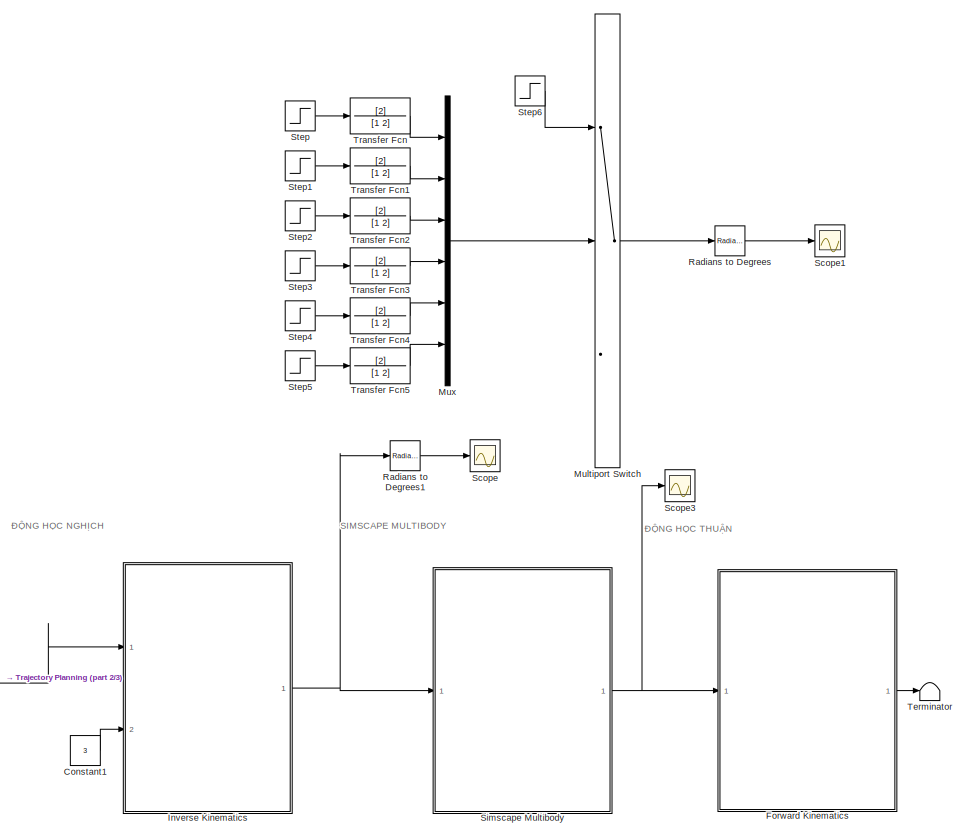
[diagram: root canvas - part 1/3, central region]
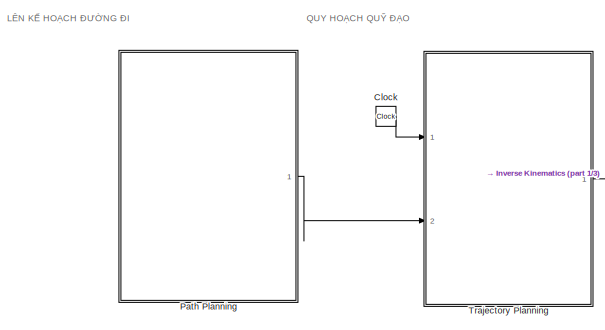
[diagram: root canvas - part 2/3, middle left region]
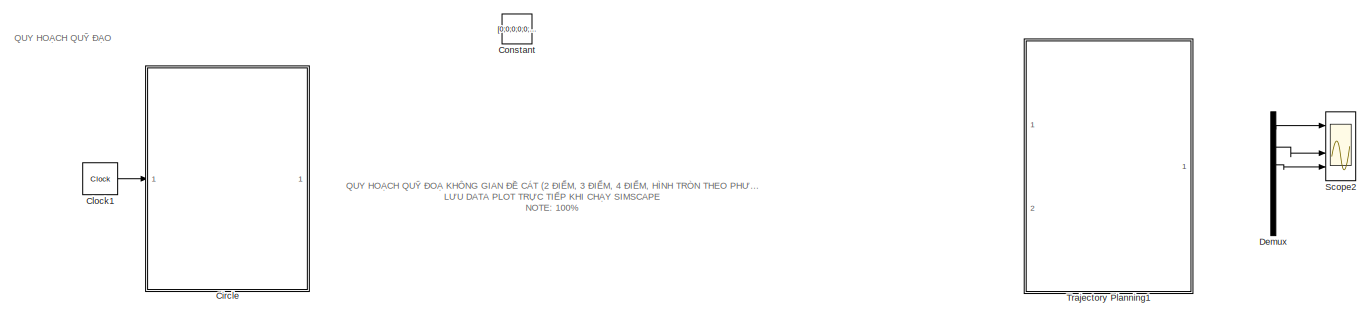
[diagram: root canvas - part 3/3, full width, bottom band]
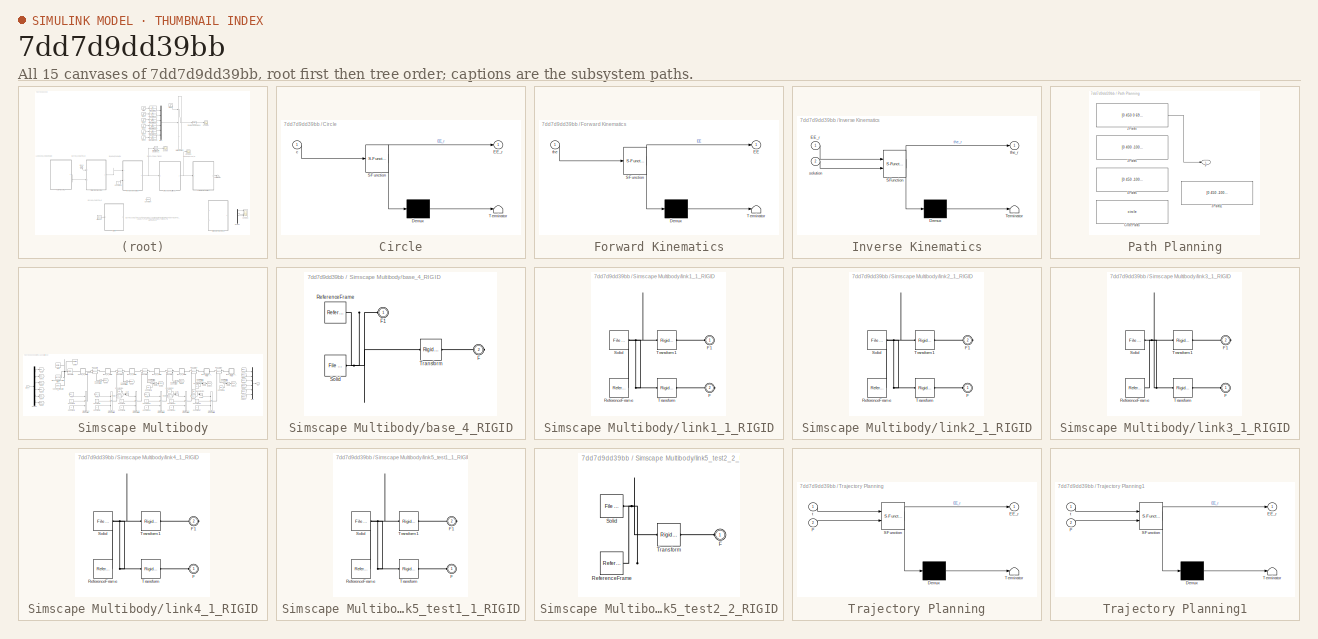
[diagram: thumbnail index - all 15 canvases of the model, root first then tree order]
MODEL slx_7dd7d9dd39bb
KIND model
CONFIG AbsTol = auto
CONFIG EnableMultiTasking = off
CONFIG FixedStep = 0.01
CONFIG MaxStep = auto
CONFIG MinStep = auto
CONFIG RelTol = 1e-3
CONFIG SampleTimeConstraint = Unconstrained
CONFIG SolverName = FixedStepAuto
CONFIG StartTime = 0.0
CONFIG StopTime = 10
WORKSPACE source: external: MATLAB File  (data not in archive)
BLOCK [SubSystem] Circle
  Commented = on
  ErrorFcn = Stateflow.Translate.translate
  PermitHierarchicalResolution = ExplicitOnly
  Ports = [1, 1]
  RequestExecContextInheritance = off
  SFBlockType = MATLAB Function
  TreatAsAtomicUnit = on
BLOCK [Demux] Circle/ Demux 
  Outputs = 1
  Ports = [1, 1]
BLOCK [S-Function] Circle/ SFunction 
  EnableBusSupport = on
  FunctionName = sf_sfun
  PortCounts = [1 2]
  Ports = [1, 2]
  SFcnIsStateOwnerBlock = off
  SFunctionDeploymentMode = off
  Tag = Stateflow S-Function 4
BLOCK [Terminator] Circle/ Terminator 
BLOCK [Outport] Circle/EE_r
BLOCK [Inport] Circle/c
BLOCK [Clock] Clock
BLOCK [Clock] Clock1
  Commented = on
  DisplayTime = on
BLOCK [Constant] Constant
  Value = [0;0;0;0;0;0]
BLOCK [Constant] Constant1
  Value = 3
BLOCK [Demux] Demux
  Outputs = 6
  Ports = [1, 6]
BLOCK [SubSystem] Forward Kinematics
  ErrorFcn = Stateflow.Translate.translate
  PermitHierarchicalResolution = ExplicitOnly
  Ports = [1, 1]
  RequestExecContextInheritance = off
  SFBlockType = MATLAB Function
  TreatAsAtomicUnit = on
BLOCK [Demux] Forward Kinematics/ Demux 
  Outputs = 1
  Ports = [1, 1]
BLOCK [S-Function] Forward Kinematics/ SFunction 
  EnableBusSupport = on
  FunctionName = sf_sfun
  PortCounts = [1 2]
  Ports = [1, 2]
  SFcnIsStateOwnerBlock = off
  SFunctionDeploymentMode = off
  Tag = Stateflow S-Function 1
BLOCK [Terminator] Forward Kinematics/ Terminator 
BLOCK [Outport] Forward Kinematics/EE
BLOCK [Inport] Forward Kinematics/the
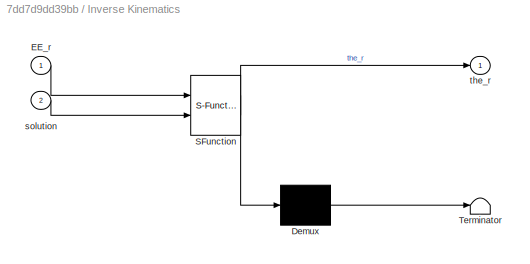
BLOCK [SubSystem] Inverse Kinematics
  ErrorFcn = Stateflow.Translate.translate
  PermitHierarchicalResolution = ExplicitOnly
  Ports = [2, 1]
  RequestExecContextInheritance = off
  SFBlockType = MATLAB Function
  TreatAsAtomicUnit = on
BLOCK [Demux] Inverse Kinematics/ Demux 
  Outputs = 1
  Ports = [1, 1]
BLOCK [S-Function] Inverse Kinematics/ SFunction 
  EnableBusSupport = on
  FunctionName = sf_sfun
  PortCounts = [2 2]
  Ports = [2, 2]
  SFcnIsStateOwnerBlock = off
  SFunctionDeploymentMode = off
  Tag = Stateflow S-Function 6
BLOCK [Terminator] Inverse Kinematics/ Terminator 
BLOCK [Inport] Inverse Kinematics/EE_r
BLOCK [Inport] Inverse Kinematics/solution
  Port = 2
BLOCK [Outport] Inverse Kinematics/the_r
BLOCK [MultiPortSwitch] Multiport Switch
  Commented = on
  InputSameDT = off
  Inputs = 2
  Ports = [3, 1]
  SaturateOnIntegerOverflow = off
BLOCK [Mux] Mux
  Commented = on
  DisplayOption = bar
  Inputs = 6
  Ports = [6, 1]
BLOCK [SubSystem] Path Planning
  Ports = [0, 1]
  RequestExecContextInheritance = off
BLOCK [Constant] Path Planning/2 Points
  Value = [0 450 0 695 0 0 0; 10/2 450 100 675 0 0 0;20/2 450 0 695 0 0 0]
BLOCK [Constant] Path Planning/3 Points
  Commented = on
  Value = [0 400 -100 650 0 0 0; 10/3 400 100 650 0 0 0; 20/3 400 0 500 0 0 0; 30/3 400 -100 650 0 0 0]
BLOCK [Constant] Path Planning/3 Points1
  Commented = on
  Value = [0 450 -100 550 0 0 0; 10/3 450 100 650 0 0 0; 20/3 450 100 450 0 0 0; 30/3 450 -100 550 0 0 0]
BLOCK [Constant] Path Planning/4 Points
  Commented = on
  Value = [0 450 -100 650 0 0 0; 10/4 450 100 650 0 0 0; 20/4 450 100 500 0 0 0; 30/4 450 -100 500 0 0 0;40/4 450 -100 650 0 0 0]
BLOCK [Constant] Path Planning/Circle Points
  Commented = on
  Value = circle
BLOCK [Outport] Path Planning/P
BLOCK [Reference] Radians to Degrees  REF=simulink_extras/Transformations/Radians
to Degrees
  Commented = on
  Ports = [1, 1]
  SourceBlock = simulink_extras/Transformations/Radians\nto Degrees
  SourceProductBaseCode = SL
  SourceType = RadiansToDegrees
BLOCK [Reference] Radians to Degrees1  REF=simulink_extras/Transformations/Radians
to Degrees
  Ports = [1, 1]
  SourceBlock = simulink_extras/Transformations/Radians\nto Degrees
  SourceProductBaseCode = SL
  SourceType = RadiansToDegrees
BLOCK [Scope] Scope
  Floating = off
  NumInputPorts = 1
  Ports = [1]
  ScopeSpecificationString = Simulink.scopes.TimeScopeBlockCfg('CurrentConfiguration', extmgr.ConfigurationSet(extmgr.Configuration('Core','General UI',true),extmgr.Configuration('Core','Source UI',true),extmgr.Configuration('Sources','WiredSimulink',true,'DataLogging',true,'DataLoggingSaveFormat','StructureWithTime'),extmgr.Configuration('Visuals','Time Domain',true,'SerializedDisplays',{struct('MinYLimReal','-103.54614','Ma...<+1755ch>
BLOCK [Scope] Scope1
  Commented = on
  Floating = off
  NumInputPorts = 1
  Ports = [1]
  ScopeSpecificationString = Simulink.scopes.TimeScopeBlockCfg('CurrentConfiguration', extmgr.ConfigurationSet(extmgr.Configuration('Core','General UI',true,'FigureColor',[1 1 1]),extmgr.Configuration('Core','Source UI',true),extmgr.Configuration('Sources','WiredSimulink',true,'DataLoggingVariableName','ScopeData2','DataLogging',true,'DataLoggingSaveFormat','StructureWithTime'),extmgr.Configuration('Visuals','Time Domain',tru...<+2275ch>
BLOCK [Scope] Scope2
  Floating = off
  NumInputPorts = 4
  Ports = [4]
  ScopeSpecificationString = Simulink.scopes.TimeScopeBlockCfg('CurrentConfiguration', extmgr.ConfigurationSet(extmgr.Configuration('Core','General UI',true,'FigureColor',[1 1 1]),extmgr.Configuration('Core','Source UI',true),extmgr.Configuration('Sources','WiredSimulink',true,'DataLoggingVariableName','ScopeData1'),extmgr.Configuration('Visuals','Time Domain',true,'SerializedDisplays',{struct('MinYLimReal','350.00000','MaxYL...<+3159ch>
BLOCK [Scope] Scope3
  Floating = off
  NumInputPorts = 1
  Ports = [1]
  ScopeSpecificationString = Simulink.scopes.TimeScopeBlockCfg('CurrentConfiguration', extmgr.ConfigurationSet(extmgr.Configuration('Core','General UI',true),extmgr.Configuration('Core','Source UI',true),extmgr.Configuration('Sources','WiredSimulink',true,'DataLoggingVariableName','ScopeData1'),extmgr.Configuration('Visuals','Time Domain',true,'SerializedDisplays',{struct('MinYLimReal','-1.80722','MaxYLimReal','3.59857','YLab...<+1680ch>
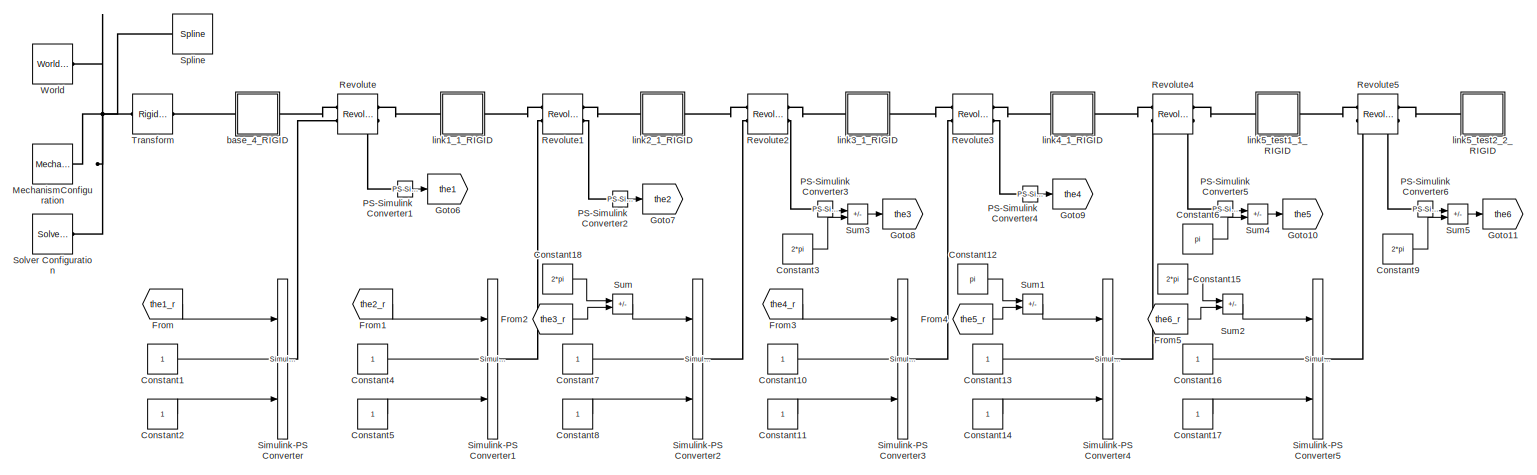
[diagram: Simscape Multibody - part 1/3, most of the canvas]
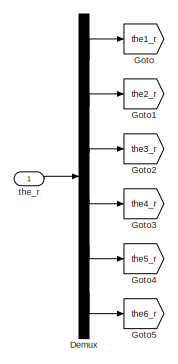
[diagram: Simscape Multibody - part 2/3, middle left region]
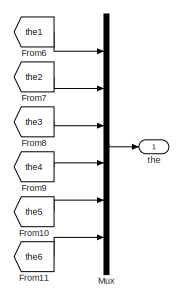
[diagram: Simscape Multibody - part 3/3, middle right region]
BLOCK [SubSystem] Simscape Multibody
  Ports = [1, 1]
  RequestExecContextInheritance = off
BLOCK [Constant] Simscape Multibody/Constant1
BLOCK [Constant] Simscape Multibody/Constant10
BLOCK [Constant] Simscape Multibody/Constant11
BLOCK [Constant] Simscape Multibody/Constant12
  Value = pi
BLOCK [Constant] Simscape Multibody/Constant13
BLOCK [Constant] Simscape Multibody/Constant14
BLOCK [Constant] Simscape Multibody/Constant15
  Value = 2*pi
BLOCK [Constant] Simscape Multibody/Constant16
BLOCK [Constant] Simscape Multibody/Constant17
BLOCK [Constant] Simscape Multibody/Constant18
  Value = 2*pi
BLOCK [Constant] Simscape Multibody/Constant2
BLOCK [Constant] Simscape Multibody/Constant3
  Value = 2*pi
BLOCK [Constant] Simscape Multibody/Constant4
BLOCK [Constant] Simscape Multibody/Constant5
BLOCK [Constant] Simscape Multibody/Constant6
  Value = pi
BLOCK [Constant] Simscape Multibody/Constant7
BLOCK [Constant] Simscape Multibody/Constant8
BLOCK [Constant] Simscape Multibody/Constant9
  Value = 2*pi
BLOCK [Demux] Simscape Multibody/Demux
  Outputs = 6
  Ports = [1, 6]
BLOCK [From] Simscape Multibody/From
  GotoTag = the1_r
BLOCK [From] Simscape Multibody/From1
  GotoTag = the2_r
BLOCK [From] Simscape Multibody/From10
  GotoTag = the5
BLOCK [From] Simscape Multibody/From11
  GotoTag = the6
BLOCK [From] Simscape Multibody/From2
  GotoTag = the3_r
BLOCK [From] Simscape Multibody/From3
  GotoTag = the4_r
BLOCK [From] Simscape Multibody/From4
  GotoTag = the5_r
BLOCK [From] Simscape Multibody/From5
  GotoTag = the6_r
BLOCK [From] Simscape Multibody/From6
  GotoTag = the1
BLOCK [From] Simscape Multibody/From7
  GotoTag = the2
BLOCK [From] Simscape Multibody/From8
  GotoTag = the3
BLOCK [From] Simscape Multibody/From9
  GotoTag = the4
BLOCK [Goto] Simscape Multibody/Goto
  GotoTag = the1_r
BLOCK [Goto] Simscape Multibody/Goto1
  GotoTag = the2_r
BLOCK [Goto] Simscape Multibody/Goto10
  GotoTag = the5
BLOCK [Goto] Simscape Multibody/Goto11
  GotoTag = the6
BLOCK [Goto] Simscape Multibody/Goto2
  GotoTag = the3_r
BLOCK [Goto] Simscape Multibody/Goto3
  GotoTag = the4_r
BLOCK [Goto] Simscape Multibody/Goto4
  GotoTag = the5_r
BLOCK [Goto] Simscape Multibody/Goto5
  GotoTag = the6_r
BLOCK [Goto] Simscape Multibody/Goto6
  GotoTag = the1
BLOCK [Goto] Simscape Multibody/Goto7
  GotoTag = the2
BLOCK [Goto] Simscape Multibody/Goto8
  GotoTag = the3
BLOCK [Goto] Simscape Multibody/Goto9
  GotoTag = the4
BLOCK [Reference] Simscape Multibody/MechanismConfiguration  REF=sm_lib/Utilities/Mechanism
Configuration
  Ports = [0, 0, 0, 0, 0, 0, 1]
  SourceBlock = sm_lib/Utilities/Mechanism\nConfiguration
  SourceProductBaseCode = MS
  SourceType = Mechanism\nConfiguration
BLOCK [Mux] Simscape Multibody/Mux
  DisplayOption = bar
  Inputs = 6
  Ports = [6, 1]
BLOCK [Reference] Simscape Multibody/PS-Simulink Converter1  REF=nesl_utility/PS-Simulink
Converter
  Ports = [0, 1, 0, 0, 0, 1]
  SourceBlock = nesl_utility/PS-Simulink\nConverter
  SourceProductBaseCode = PW,SS
  SourceType = PS-Simulink\nConverter
BLOCK [Reference] Simscape Multibody/PS-Simulink Converter2  REF=nesl_utility/PS-Simulink
Converter
  Ports = [0, 1, 0, 0, 0, 1]
  SourceBlock = nesl_utility/PS-Simulink\nConverter
  SourceProductBaseCode = PW,SS
  SourceType = PS-Simulink\nConverter
BLOCK [Reference] Simscape Multibody/PS-Simulink Converter3  REF=nesl_utility/PS-Simulink
Converter
  Ports = [0, 1, 0, 0, 0, 1]
  SourceBlock = nesl_utility/PS-Simulink\nConverter
  SourceProductBaseCode = PW,SS
  SourceType = PS-Simulink\nConverter
BLOCK [Reference] Simscape Multibody/PS-Simulink Converter4  REF=nesl_utility/PS-Simulink
Converter
  Ports = [0, 1, 0, 0, 0, 1]
  SourceBlock = nesl_utility/PS-Simulink\nConverter
  SourceProductBaseCode = PW,SS
  SourceType = PS-Simulink\nConverter
BLOCK [Reference] Simscape Multibody/PS-Simulink Converter5  REF=nesl_utility/PS-Simulink
Converter
  Ports = [0, 1, 0, 0, 0, 1]
  SourceBlock = nesl_utility/PS-Simulink\nConverter
  SourceProductBaseCode = PW,SS
  SourceType = PS-Simulink\nConverter
BLOCK [Reference] Simscape Multibody/PS-Simulink Converter6  REF=nesl_utility/PS-Simulink
Converter
  Ports = [0, 1, 0, 0, 0, 1]
  SourceBlock = nesl_utility/PS-Simulink\nConverter
  SourceProductBaseCode = PW,SS
  SourceType = PS-Simulink\nConverter
BLOCK [Reference] Simscape Multibody/Revolute  REF=sm_lib/Joints/Revolute Joint
  Ports = [0, 0, 0, 0, 0, 2, 2]
  SourceBlock = sm_lib/Joints/Revolute Joint
  SourceProductBaseCode = MS
  SourceType = Revolute Joint
BLOCK [Reference] Simscape Multibody/Revolute1  REF=sm_lib/Joints/Revolute Joint
  Ports = [0, 0, 0, 0, 0, 2, 2]
  SourceBlock = sm_lib/Joints/Revolute Joint
  SourceProductBaseCode = MS
  SourceType = Revolute Joint
BLOCK [Reference] Simscape Multibody/Revolute2  REF=sm_lib/Joints/Revolute Joint
  Ports = [0, 0, 0, 0, 0, 2, 2]
  SourceBlock = sm_lib/Joints/Revolute Joint
  SourceProductBaseCode = MS
  SourceType = Revolute Joint
BLOCK [Reference] Simscape Multibody/Revolute3  REF=sm_lib/Joints/Revolute Joint
  Ports = [0, 0, 0, 0, 0, 2, 2]
  SourceBlock = sm_lib/Joints/Revolute Joint
  SourceProductBaseCode = MS
  SourceType = Revolute Joint
BLOCK [Reference] Simscape Multibody/Revolute4  REF=sm_lib/Joints/Revolute Joint
  Ports = [0, 0, 0, 0, 0, 2, 2]
  SourceBlock = sm_lib/Joints/Revolute Joint
  SourceProductBaseCode = MS
  SourceType = Revolute Joint
BLOCK [Reference] Simscape Multibody/Revolute5  REF=sm_lib/Joints/Revolute Joint
  Ports = [0, 0, 0, 0, 0, 2, 2]
  SourceBlock = sm_lib/Joints/Revolute Joint
  SourceProductBaseCode = MS
  SourceType = Revolute Joint
BLOCK [Reference] Simscape Multibody/Simulink-PS Converter  REF=nesl_utility/Simulink-PS
Converter
  Ports = [3, 0, 0, 0, 0, 0, 1]
  SourceBlock = nesl_utility/Simulink-PS\nConverter
  SourceProductBaseCode = PW,SS
  SourceType = Simulink-PS\nConverter
BLOCK [Reference] Simscape Multibody/Simulink-PS Converter1  REF=nesl_utility/Simulink-PS
Converter
  Ports = [3, 0, 0, 0, 0, 0, 1]
  SourceBlock = nesl_utility/Simulink-PS\nConverter
  SourceProductBaseCode = PW,SS
  SourceType = Simulink-PS\nConverter
BLOCK [Reference] Simscape Multibody/Simulink-PS Converter2  REF=nesl_utility/Simulink-PS
Converter
  Ports = [3, 0, 0, 0, 0, 0, 1]
  SourceBlock = nesl_utility/Simulink-PS\nConverter
  SourceProductBaseCode = PW,SS
  SourceType = Simulink-PS\nConverter
BLOCK [Reference] Simscape Multibody/Simulink-PS Converter3  REF=nesl_utility/Simulink-PS
Converter
  Ports = [3, 0, 0, 0, 0, 0, 1]
  SourceBlock = nesl_utility/Simulink-PS\nConverter
  SourceProductBaseCode = PW,SS
  SourceType = Simulink-PS\nConverter
BLOCK [Reference] Simscape Multibody/Simulink-PS Converter4  REF=nesl_utility/Simulink-PS
Converter
  Ports = [3, 0, 0, 0, 0, 0, 1]
  SourceBlock = nesl_utility/Simulink-PS\nConverter
  SourceProductBaseCode = PW,SS
  SourceType = Simulink-PS\nConverter
BLOCK [Reference] Simscape Multibody/Simulink-PS Converter5  REF=nesl_utility/Simulink-PS
Converter
  Ports = [3, 0, 0, 0, 0, 0, 1]
  SourceBlock = nesl_utility/Simulink-PS\nConverter
  SourceProductBaseCode = PW,SS
  SourceType = Simulink-PS\nConverter
BLOCK [Reference] Simscape Multibody/Solver Configuration  REF=nesl_utility/Solver
Configuration
  Ports = [0, 0, 0, 0, 0, 0, 1]
  SourceBlock = nesl_utility/Solver\nConfiguration
  SourceProductBaseCode = PW,SS
  SourceType = Solver\nConfiguration
BLOCK [Reference] Simscape Multibody/Spline  REF=sm_lib/Curves and Surfaces/Spline
  Ports = [0, 0, 0, 0, 0, 1, 1]
  SourceBlock = sm_lib/Curves and Surfaces/Spline
  SourceProductBaseCode = MS
  SourceType = Spline
BLOCK [Sum] Simscape Multibody/Sum
  IconShape = rectangular
  Inputs = +-
  Ports = [2, 1]
BLOCK [Sum] Simscape Multibody/Sum1
  IconShape = rectangular
  Inputs = +-
  Ports = [2, 1]
BLOCK [Sum] Simscape Multibody/Sum2
  IconShape = rectangular
  Inputs = +-
  Ports = [2, 1]
BLOCK [Sum] Simscape Multibody/Sum3
  IconShape = rectangular
  Inputs = -+
  Ports = [2, 1]
BLOCK [Sum] Simscape Multibody/Sum4
  IconShape = rectangular
  Inputs = -+
  Ports = [2, 1]
BLOCK [Sum] Simscape Multibody/Sum5
  IconShape = rectangular
  Inputs = -+
  Ports = [2, 1]
BLOCK [Reference] Simscape Multibody/Transform  REF=sm_lib/Frames and
Transforms/Rigid
Transform
  Ports = [0, 0, 0, 0, 0, 1, 1]
  SourceBlock = sm_lib/Frames and\nTransforms/Rigid\nTransform
  SourceProductBaseCode = MS
  SourceType = Rigid\nTransform
BLOCK [Reference] Simscape Multibody/World  REF=sm_lib/Frames and
Transforms/World Frame
  Ports = [0, 0, 0, 0, 0, 0, 1]
  SourceBlock = sm_lib/Frames and\nTransforms/World Frame
  SourceProductBaseCode = MS
  SourceType = World Frame
BLOCK [SubSystem] Simscape Multibody/base_4_RIGID
  Ports = [0, 0, 0, 0, 0, 1, 1]
  RequestExecContextInheritance = off
BLOCK [PMIOPort] Simscape Multibody/base_4_RIGID/F
  Port = 2
  Side = Right
BLOCK [PMIOPort] Simscape Multibody/base_4_RIGID/F1
  Side = Left
BLOCK [Reference] Simscape Multibody/base_4_RIGID/ReferenceFrame  REF=sm_lib/Frames and
Transforms/Reference
Frame
  Ports = [0, 0, 0, 0, 0, 0, 1]
  SourceBlock = sm_lib/Frames and\nTransforms/Reference\nFrame
  SourceProductBaseCode = MS
  SourceType = Reference\nFrame
BLOCK [Reference] Simscape Multibody/base_4_RIGID/Solid  REF=sm_lib/Body Elements/File Solid
  Ports = [0, 0, 0, 0, 0, 0, 1]
  SourceBlock = sm_lib/Body Elements/File Solid
  SourceProductBaseCode = MS
  SourceType = File Solid
BLOCK [Reference] Simscape Multibody/base_4_RIGID/Transform  REF=sm_lib/Frames and
Transforms/Rigid
Transform
  Ports = [0, 0, 0, 0, 0, 1, 1]
  SourceBlock = sm_lib/Frames and\nTransforms/Rigid\nTransform
  SourceProductBaseCode = MS
  SourceType = Rigid\nTransform
BLOCK [SubSystem] Simscape Multibody/link1_1_RIGID
  Ports = [0, 0, 0, 0, 0, 1, 1]
  RequestExecContextInheritance = off
BLOCK [PMIOPort] Simscape Multibody/link1_1_RIGID/F
  Port = 2
  Side = Right
BLOCK [PMIOPort] Simscape Multibody/link1_1_RIGID/F1
  Side = Left
BLOCK [Reference] Simscape Multibody/link1_1_RIGID/ReferenceFrame  REF=sm_lib/Frames and
Transforms/Reference
Frame
  Ports = [0, 0, 0, 0, 0, 0, 1]
  SourceBlock = sm_lib/Frames and\nTransforms/Reference\nFrame
  SourceProductBaseCode = MS
  SourceType = Reference\nFrame
BLOCK [Reference] Simscape Multibody/link1_1_RIGID/Solid  REF=sm_lib/Body Elements/File Solid
  Ports = [0, 0, 0, 0, 0, 0, 1]
  SourceBlock = sm_lib/Body Elements/File Solid
  SourceProductBaseCode = MS
  SourceType = File Solid
BLOCK [Reference] Simscape Multibody/link1_1_RIGID/Transform  REF=sm_lib/Frames and
Transforms/Rigid
Transform
  Ports = [0, 0, 0, 0, 0, 1, 1]
  SourceBlock = sm_lib/Frames and\nTransforms/Rigid\nTransform
  SourceProductBaseCode = MS
  SourceType = Rigid\nTransform
BLOCK [Reference] Simscape Multibody/link1_1_RIGID/Transform1  REF=sm_lib/Frames and
Transforms/Rigid
Transform
  Ports = [0, 0, 0, 0, 0, 1, 1]
  SourceBlock = sm_lib/Frames and\nTransforms/Rigid\nTransform
  SourceProductBaseCode = MS
  SourceType = Rigid\nTransform
BLOCK [SubSystem] Simscape Multibody/link2_1_RIGID
  Ports = [0, 0, 0, 0, 0, 1, 1]
  RequestExecContextInheritance = off
BLOCK [PMIOPort] Simscape Multibody/link2_1_RIGID/F
  Side = Left
BLOCK [PMIOPort] Simscape Multibody/link2_1_RIGID/F1
  Port = 2
  Side = Right
BLOCK [Reference] Simscape Multibody/link2_1_RIGID/ReferenceFrame  REF=sm_lib/Frames and
Transforms/Reference
Frame
  Ports = [0, 0, 0, 0, 0, 0, 1]
  SourceBlock = sm_lib/Frames and\nTransforms/Reference\nFrame
  SourceProductBaseCode = MS
  SourceType = Reference\nFrame
BLOCK [Reference] Simscape Multibody/link2_1_RIGID/Solid  REF=sm_lib/Body Elements/File Solid
  Ports = [0, 0, 0, 0, 0, 0, 1]
  SourceBlock = sm_lib/Body Elements/File Solid
  SourceProductBaseCode = MS
  SourceType = File Solid
BLOCK [Reference] Simscape Multibody/link2_1_RIGID/Transform  REF=sm_lib/Frames and
Transforms/Rigid
Transform
  Ports = [0, 0, 0, 0, 0, 1, 1]
  SourceBlock = sm_lib/Frames and\nTransforms/Rigid\nTransform
  SourceProductBaseCode = MS
  SourceType = Rigid\nTransform
BLOCK [Reference] Simscape Multibody/link2_1_RIGID/Transform1  REF=sm_lib/Frames and
Transforms/Rigid
Transform
  Ports = [0, 0, 0, 0, 0, 1, 1]
  SourceBlock = sm_lib/Frames and\nTransforms/Rigid\nTransform
  SourceProductBaseCode = MS
  SourceType = Rigid\nTransform
BLOCK [SubSystem] Simscape Multibody/link3_1_RIGID
  Ports = [0, 0, 0, 0, 0, 1, 1]
  RequestExecContextInheritance = off
BLOCK [PMIOPort] Simscape Multibody/link3_1_RIGID/F
  Side = Left
BLOCK [PMIOPort] Simscape Multibody/link3_1_RIGID/F1
  Port = 2
  Side = Right
BLOCK [Reference] Simscape Multibody/link3_1_RIGID/ReferenceFrame  REF=sm_lib/Frames and
Transforms/Reference
Frame
  Ports = [0, 0, 0, 0, 0, 0, 1]
  SourceBlock = sm_lib/Frames and\nTransforms/Reference\nFrame
  SourceProductBaseCode = MS
  SourceType = Reference\nFrame
BLOCK [Reference] Simscape Multibody/link3_1_RIGID/Solid  REF=sm_lib/Body Elements/File Solid
  Ports = [0, 0, 0, 0, 0, 0, 1]
  SourceBlock = sm_lib/Body Elements/File Solid
  SourceProductBaseCode = MS
  SourceType = File Solid
BLOCK [Reference] Simscape Multibody/link3_1_RIGID/Transform  REF=sm_lib/Frames and
Transforms/Rigid
Transform
  Ports = [0, 0, 0, 0, 0, 1, 1]
  SourceBlock = sm_lib/Frames and\nTransforms/Rigid\nTransform
  SourceProductBaseCode = MS
  SourceType = Rigid\nTransform
BLOCK [Reference] Simscape Multibody/link3_1_RIGID/Transform1  REF=sm_lib/Frames and
Transforms/Rigid
Transform
  Ports = [0, 0, 0, 0, 0, 1, 1]
  SourceBlock = sm_lib/Frames and\nTransforms/Rigid\nTransform
  SourceProductBaseCode = MS
  SourceType = Rigid\nTransform
BLOCK [SubSystem] Simscape Multibody/link4_1_RIGID
  Ports = [0, 0, 0, 0, 0, 1, 1]
  RequestExecContextInheritance = off
BLOCK [PMIOPort] Simscape Multibody/link4_1_RIGID/F
  Side = Left
BLOCK [PMIOPort] Simscape Multibody/link4_1_RIGID/F1
  Port = 2
  Side = Right
BLOCK [Reference] Simscape Multibody/link4_1_RIGID/ReferenceFrame  REF=sm_lib/Frames and
Transforms/Reference
Frame
  Ports = [0, 0, 0, 0, 0, 0, 1]
  SourceBlock = sm_lib/Frames and\nTransforms/Reference\nFrame
  SourceProductBaseCode = MS
  SourceType = Reference\nFrame
BLOCK [Reference] Simscape Multibody/link4_1_RIGID/Solid  REF=sm_lib/Body Elements/File Solid
  Ports = [0, 0, 0, 0, 0, 0, 1]
  SourceBlock = sm_lib/Body Elements/File Solid
  SourceProductBaseCode = MS
  SourceType = File Solid
BLOCK [Reference] Simscape Multibody/link4_1_RIGID/Transform  REF=sm_lib/Frames and
Transforms/Rigid
Transform
  Ports = [0, 0, 0, 0, 0, 1, 1]
  SourceBlock = sm_lib/Frames and\nTransforms/Rigid\nTransform
  SourceProductBaseCode = MS
  SourceType = Rigid\nTransform
BLOCK [Reference] Simscape Multibody/link4_1_RIGID/Transform1  REF=sm_lib/Frames and
Transforms/Rigid
Transform
  Ports = [0, 0, 0, 0, 0, 1, 1]
  SourceBlock = sm_lib/Frames and\nTransforms/Rigid\nTransform
  SourceProductBaseCode = MS
  SourceType = Rigid\nTransform
BLOCK [SubSystem] Simscape Multibody/link5_test1_1_RIGID
  Ports = [0, 0, 0, 0, 0, 1, 1]
  RequestExecContextInheritance = off
BLOCK [PMIOPort] Simscape Multibody/link5_test1_1_RIGID/F
  Side = Left
BLOCK [PMIOPort] Simscape Multibody/link5_test1_1_RIGID/F1
  Port = 2
  Side = Right
BLOCK [Reference] Simscape Multibody/link5_test1_1_RIGID/ReferenceFrame  REF=sm_lib/Frames and
Transforms/Reference
Frame
  Ports = [0, 0, 0, 0, 0, 0, 1]
  SourceBlock = sm_lib/Frames and\nTransforms/Reference\nFrame
  SourceProductBaseCode = MS
  SourceType = Reference\nFrame
BLOCK [Reference] Simscape Multibody/link5_test1_1_RIGID/Solid  REF=sm_lib/Body Elements/File Solid
  Ports = [0, 0, 0, 0, 0, 0, 1]
  SourceBlock = sm_lib/Body Elements/File Solid
  SourceProductBaseCode = MS
  SourceType = File Solid
BLOCK [Reference] Simscape Multibody/link5_test1_1_RIGID/Transform  REF=sm_lib/Frames and
Transforms/Rigid
Transform
  Ports = [0, 0, 0, 0, 0, 1, 1]
  SourceBlock = sm_lib/Frames and\nTransforms/Rigid\nTransform
  SourceProductBaseCode = MS
  SourceType = Rigid\nTransform
BLOCK [Reference] Simscape Multibody/link5_test1_1_RIGID/Transform1  REF=sm_lib/Frames and
Transforms/Rigid
Transform
  Ports = [0, 0, 0, 0, 0, 1, 1]
  SourceBlock = sm_lib/Frames and\nTransforms/Rigid\nTransform
  SourceProductBaseCode = MS
  SourceType = Rigid\nTransform
BLOCK [SubSystem] Simscape Multibody/link5_test2_2_RIGID
  Ports = [0, 0, 0, 0, 0, 1]
  RequestExecContextInheritance = off
BLOCK [PMIOPort] Simscape Multibody/link5_test2_2_RIGID/F
  Side = Left
BLOCK [Reference] Simscape Multibody/link5_test2_2_RIGID/ReferenceFrame  REF=sm_lib/Frames and
Transforms/Reference
Frame
  Ports = [0, 0, 0, 0, 0, 0, 1]
  SourceBlock = sm_lib/Frames and\nTransforms/Reference\nFrame
  SourceProductBaseCode = MS
  SourceType = Reference\nFrame
BLOCK [Reference] Simscape Multibody/link5_test2_2_RIGID/Solid  REF=sm_lib/Body Elements/File Solid
  Ports = [0, 0, 0, 0, 0, 0, 1]
  SourceBlock = sm_lib/Body Elements/File Solid
  SourceProductBaseCode = MS
  SourceType = File Solid
BLOCK [Reference] Simscape Multibody/link5_test2_2_RIGID/Transform  REF=sm_lib/Frames and
Transforms/Rigid
Transform
  Ports = [0, 0, 0, 0, 0, 1, 1]
  SourceBlock = sm_lib/Frames and\nTransforms/Rigid\nTransform
  SourceProductBaseCode = MS
  SourceType = Rigid\nTransform
BLOCK [Outport] Simscape Multibody/the
BLOCK [Inport] Simscape Multibody/the_r
BLOCK [Step] Step
  After = -0.052484081297928
  Commented = on
  SampleTime = 0
  Time = 0
BLOCK [Step] Step1
  After = 0.010485739849624
  Commented = on
  SampleTime = 0
  Time = 0
BLOCK [Step] Step2
  After = 0.105112260434987
  Commented = on
  SampleTime = 0
  Time = 0
BLOCK [Step] Step3
  After = -0.509342931142206
  Commented = on
  SampleTime = 0
  Time = 0
BLOCK [Step] Step4
  After = -0.649990510981055
  Commented = on
  SampleTime = 0
  Time = 0
BLOCK [Step] Step5
  After = -1.591522076129573
  Commented = on
  SampleTime = 0
  Time = 0
BLOCK [Step] Step6
  After = 2
  Before = 1
  Commented = on
  SampleTime = 0
  Time = 5
BLOCK [Terminator] Terminator
BLOCK [SubSystem] Trajectory Planning
  ErrorFcn = Stateflow.Translate.translate
  PermitHierarchicalResolution = ExplicitOnly
  Ports = [2, 1]
  RequestExecContextInheritance = off
  SFBlockType = MATLAB Function
  TreatAsAtomicUnit = on
BLOCK [Demux] Trajectory Planning/ Demux 
  Outputs = 1
  Ports = [1, 1]
BLOCK [S-Function] Trajectory Planning/ SFunction 
  EnableBusSupport = on
  FunctionName = sf_sfun
  PortCounts = [2 2]
  Ports = [2, 2]
  SFcnIsStateOwnerBlock = off
  SFunctionDeploymentMode = off
  Tag = Stateflow S-Function 5
BLOCK [Terminator] Trajectory Planning/ Terminator 
BLOCK [Outport] Trajectory Planning/EE_r
BLOCK [Inport] Trajectory Planning/P
  Port = 2
BLOCK [Inport] Trajectory Planning/t
BLOCK [SubSystem] Trajectory Planning1
  Commented = on
  ErrorFcn = Stateflow.Translate.translate
  PermitHierarchicalResolution = ExplicitOnly
  Ports = [2, 1]
  RequestExecContextInheritance = off
  SFBlockType = MATLAB Function
  TreatAsAtomicUnit = on
BLOCK [Demux] Trajectory Planning1/ Demux 
  Outputs = 1
  Ports = [1, 1]
BLOCK [S-Function] Trajectory Planning1/ SFunction 
  EnableBusSupport = on
  FunctionName = sf_sfun
  PortCounts = [2 2]
  Ports = [2, 2]
  SFcnIsStateOwnerBlock = off
  SFunctionDeploymentMode = off
  Tag = Stateflow S-Function 2
BLOCK [Terminator] Trajectory Planning1/ Terminator 
BLOCK [Outport] Trajectory Planning1/EE_r
BLOCK [Inport] Trajectory Planning1/P
  Port = 2
BLOCK [Inport] Trajectory Planning1/t
BLOCK [TransferFcn] Transfer Fcn
  Commented = on
  Denominator = [1 2]
  Numerator = [2]
BLOCK [TransferFcn] Transfer Fcn1
  Commented = on
  Denominator = [1 2]
  Numerator = [2]
BLOCK [TransferFcn] Transfer Fcn2
  Commented = on
  Denominator = [1 2]
  Numerator = [2]
BLOCK [TransferFcn] Transfer Fcn3
  Commented = on
  Denominator = [1 2]
  Numerator = [2]
BLOCK [TransferFcn] Transfer Fcn4
  Commented = on
  Denominator = [1 2]
  Numerator = [2]
BLOCK [TransferFcn] Transfer Fcn5
  Commented = on
  Denominator = [1 2]
  Numerator = [2]
ANNOTATION (root): LÊN KẾ HOẠCH ĐƯỜNG ĐI
ANNOTATION (root): QUY HOẠCH QUỸ ĐOẠ KHÔNG GIAN ĐỀ CÁT (2 ĐIỂM, 3 ĐIỂM, 4 ĐIỂM, HÌNH TRÒN THEO PHƯƠNG TRÌNH, HÌNH TRÒN THEO NHIỀU ĐIỂM) LƯU DATA PLOT TRỰC TIẾP KHI CHẠY SIMSCAPE NOTE: 100%
ANNOTATION (root): QUY HOẠCH QUỸ ĐẠO
ANNOTATION (root): SIMSCAPE MULTIBODY
ANNOTATION (root): ĐỘNG HỌC NGHỊCH
ANNOTATION (root): ĐỘNG HỌC THUẬN
LINE Clock1:1 -> Circle:1
LINE Clock:1 -> Trajectory Planning:1
LINE Constant1:1 -> Inverse Kinematics:2
LINE Demux:1 -> Scope2:1
LINE Demux:2 -> Scope2:3
LINE Demux:3 -> Scope2:4
LINE Forward Kinematics:1 -> Terminator:1
NET Inverse Kinematics:1 -> Radians to Degrees1:1, Simscape Multibody:1
LINE Multiport Switch:1 -> Radians to Degrees:1
LINE Mux:1 -> Multiport Switch:2
LINE Path Planning/2 Points:1 -> Path Planning/P:1
LINE Path Planning:1 -> Trajectory Planning:2
LINE Radians to Degrees1:1 -> Scope:1
LINE Radians to Degrees:1 -> Scope1:1
LINE Simscape Multibody/Constant10:1 -> Simscape Multibody/Simulink-PS Converter3:2
LINE Simscape Multibody/Constant11:1 -> Simscape Multibody/Simulink-PS Converter3:3
LINE Simscape Multibody/Constant12:1 -> Simscape Multibody/Sum1:1
LINE Simscape Multibody/Constant13:1 -> Simscape Multibody/Simulink-PS Converter4:2
LINE Simscape Multibody/Constant14:1 -> Simscape Multibody/Simulink-PS Converter4:3
LINE Simscape Multibody/Constant15:1 -> Simscape Multibody/Sum2:1
LINE Simscape Multibody/Constant16:1 -> Simscape Multibody/Simulink-PS Converter5:2
LINE Simscape Multibody/Constant17:1 -> Simscape Multibody/Simulink-PS Converter5:3
LINE Simscape Multibody/Constant18:1 -> Simscape Multibody/Sum:1
LINE Simscape Multibody/Constant1:1 -> Simscape Multibody/Simulink-PS Converter:2
LINE Simscape Multibody/Constant2:1 -> Simscape Multibody/Simulink-PS Converter:3
LINE Simscape Multibody/Constant3:1 -> Simscape Multibody/Sum3:2
LINE Simscape Multibody/Constant4:1 -> Simscape Multibody/Simulink-PS Converter1:2
LINE Simscape Multibody/Constant5:1 -> Simscape Multibody/Simulink-PS Converter1:3
LINE Simscape Multibody/Constant6:1 -> Simscape Multibody/Sum4:2
LINE Simscape Multibody/Constant7:1 -> Simscape Multibody/Simulink-PS Converter2:2
LINE Simscape Multibody/Constant8:1 -> Simscape Multibody/Simulink-PS Converter2:3
LINE Simscape Multibody/Constant9:1 -> Simscape Multibody/Sum5:2
LINE Simscape Multibody/Demux:1 -> Simscape Multibody/Goto:1
LINE Simscape Multibody/Demux:2 -> Simscape Multibody/Goto1:1
LINE Simscape Multibody/Demux:3 -> Simscape Multibody/Goto2:1
LINE Simscape Multibody/Demux:4 -> Simscape Multibody/Goto3:1
LINE Simscape Multibody/Demux:5 -> Simscape Multibody/Goto4:1
LINE Simscape Multibody/Demux:6 -> Simscape Multibody/Goto5:1
LINE Simscape Multibody/From10:1 -> Simscape Multibody/Mux:5
LINE Simscape Multibody/From11:1 -> Simscape Multibody/Mux:6
LINE Simscape Multibody/From1:1 -> Simscape Multibody/Simulink-PS Converter1:1
LINE Simscape Multibody/From2:1 -> Simscape Multibody/Sum:2
LINE Simscape Multibody/From3:1 -> Simscape Multibody/Simulink-PS Converter3:1
LINE Simscape Multibody/From4:1 -> Simscape Multibody/Sum1:2
LINE Simscape Multibody/From5:1 -> Simscape Multibody/Sum2:2
LINE Simscape Multibody/From6:1 -> Simscape Multibody/Mux:1
LINE Simscape Multibody/From7:1 -> Simscape Multibody/Mux:2
LINE Simscape Multibody/From8:1 -> Simscape Multibody/Mux:3
LINE Simscape Multibody/From9:1 -> Simscape Multibody/Mux:4
LINE Simscape Multibody/From:1 -> Simscape Multibody/Simulink-PS Converter:1
LINE Simscape Multibody/Mux:1 -> Simscape Multibody/the:1
LINE Simscape Multibody/PS-Simulink Converter1:1 -> Simscape Multibody/Goto6:1
LINE Simscape Multibody/PS-Simulink Converter2:1 -> Simscape Multibody/Goto7:1
LINE Simscape Multibody/PS-Simulink Converter3:1 -> Simscape Multibody/Sum3:1
LINE Simscape Multibody/PS-Simulink Converter4:1 -> Simscape Multibody/Goto9:1
LINE Simscape Multibody/PS-Simulink Converter5:1 -> Simscape Multibody/Sum4:1
LINE Simscape Multibody/PS-Simulink Converter6:1 -> Simscape Multibody/Sum5:1
LINE Simscape Multibody/Sum1:1 -> Simscape Multibody/Simulink-PS Converter4:1
LINE Simscape Multibody/Sum2:1 -> Simscape Multibody/Simulink-PS Converter5:1
LINE Simscape Multibody/Sum3:1 -> Simscape Multibody/Goto8:1
LINE Simscape Multibody/Sum4:1 -> Simscape Multibody/Goto10:1
LINE Simscape Multibody/Sum5:1 -> Simscape Multibody/Goto11:1
LINE Simscape Multibody/Sum:1 -> Simscape Multibody/Simulink-PS Converter2:1
LINE Simscape Multibody/the_r:1 -> Simscape Multibody/Demux:1
NET Simscape Multibody:1 -> Forward Kinematics:1, Scope3:1
LINE Step1:1 -> Transfer Fcn1:1
LINE Step2:1 -> Transfer Fcn2:1
LINE Step3:1 -> Transfer Fcn3:1
LINE Step4:1 -> Transfer Fcn4:1
LINE Step5:1 -> Transfer Fcn5:1
LINE Step6:1 -> Multiport Switch:1
LINE Step:1 -> Transfer Fcn:1
LINE Trajectory Planning:1 -> Inverse Kinematics:1
LINE Transfer Fcn1:1 -> Mux:2
LINE Transfer Fcn2:1 -> Mux:3
LINE Transfer Fcn3:1 -> Mux:4
LINE Transfer Fcn4:1 -> Mux:5
LINE Transfer Fcn5:1 -> Mux:6
LINE Transfer Fcn:1 -> Mux:1
PNET net1: Simscape Multibody/MechanismConfiguration:RConn1 -- Simscape Multibody/Solver Configuration:RConn1 -- Simscape Multibody/Spline:LConn1 -- Simscape Multibody/Transform:LConn1 -- Simscape Multibody/World:RConn1
PLINE Simscape Multibody/PS-Simulink Converter1:LConn1 -- Simscape Multibody/Revolute:RConn2
PLINE Simscape Multibody/PS-Simulink Converter2:LConn1 -- Simscape Multibody/Revolute1:RConn2
PLINE Simscape Multibody/PS-Simulink Converter3:LConn1 -- Simscape Multibody/Revolute2:RConn2
PLINE Simscape Multibody/PS-Simulink Converter4:LConn1 -- Simscape Multibody/Revolute3:RConn2
PLINE Simscape Multibody/PS-Simulink Converter5:LConn1 -- Simscape Multibody/Revolute4:RConn2
PLINE Simscape Multibody/PS-Simulink Converter6:LConn1 -- Simscape Multibody/Revolute5:RConn2
PLINE Simscape Multibody/Revolute1:LConn1 -- Simscape Multibody/link1_1_RIGID:RConn1
PLINE Simscape Multibody/Revolute1:LConn2 -- Simscape Multibody/Simulink-PS Converter1:RConn1
PLINE Simscape Multibody/Revolute1:RConn1 -- Simscape Multibody/link2_1_RIGID:LConn1
PLINE Simscape Multibody/Revolute2:LConn1 -- Simscape Multibody/link2_1_RIGID:RConn1
PLINE Simscape Multibody/Revolute2:LConn2 -- Simscape Multibody/Simulink-PS Converter2:RConn1
PLINE Simscape Multibody/Revolute2:RConn1 -- Simscape Multibody/link3_1_RIGID:LConn1
PLINE Simscape Multibody/Revolute3:LConn1 -- Simscape Multibody/link3_1_RIGID:RConn1
PLINE Simscape Multibody/Revolute3:LConn2 -- Simscape Multibody/Simulink-PS Converter3:RConn1
PLINE Simscape Multibody/Revolute3:RConn1 -- Simscape Multibody/link4_1_RIGID:LConn1
PLINE Simscape Multibody/Revolute4:LConn1 -- Simscape Multibody/link4_1_RIGID:RConn1
PLINE Simscape Multibody/Revolute4:LConn2 -- Simscape Multibody/Simulink-PS Converter4:RConn1
PLINE Simscape Multibody/Revolute4:RConn1 -- Simscape Multibody/link5_test1_1_RIGID:LConn1
PLINE Simscape Multibody/Revolute5:LConn1 -- Simscape Multibody/link5_test1_1_RIGID:RConn1
PLINE Simscape Multibody/Revolute5:LConn2 -- Simscape Multibody/Simulink-PS Converter5:RConn1
PLINE Simscape Multibody/Revolute5:RConn1 -- Simscape Multibody/link5_test2_2_RIGID:LConn1
PLINE Simscape Multibody/Revolute:LConn1 -- Simscape Multibody/base_4_RIGID:RConn1
PLINE Simscape Multibody/Revolute:LConn2 -- Simscape Multibody/Simulink-PS Converter:RConn1
PLINE Simscape Multibody/Revolute:RConn1 -- Simscape Multibody/link1_1_RIGID:LConn1
PLINE Simscape Multibody/Transform:RConn1 -- Simscape Multibody/base_4_RIGID:LConn1
PNET net2: Simscape Multibody/base_4_RIGID/F1:RConn1 -- Simscape Multibody/base_4_RIGID/ReferenceFrame:RConn1 -- Simscape Multibody/base_4_RIGID/Solid:RConn1 -- Simscape Multibody/base_4_RIGID/Transform:LConn1
PLINE Simscape Multibody/base_4_RIGID/F:RConn1 -- Simscape Multibody/base_4_RIGID/Transform:RConn1
PLINE Simscape Multibody/link1_1_RIGID/F1:RConn1 -- Simscape Multibody/link1_1_RIGID/Transform1:RConn1
PLINE Simscape Multibody/link1_1_RIGID/F:RConn1 -- Simscape Multibody/link1_1_RIGID/Transform:RConn1
PNET net3: Simscape Multibody/link1_1_RIGID/ReferenceFrame:RConn1 -- Simscape Multibody/link1_1_RIGID/Solid:RConn1 -- Simscape Multibody/link1_1_RIGID/Transform1:LConn1 -- Simscape Multibody/link1_1_RIGID/Transform:LConn1
PLINE Simscape Multibody/link2_1_RIGID/F1:RConn1 -- Simscape Multibody/link2_1_RIGID/Transform1:RConn1
PLINE Simscape Multibody/link2_1_RIGID/F:RConn1 -- Simscape Multibody/link2_1_RIGID/Transform:RConn1
PNET net4: Simscape Multibody/link2_1_RIGID/ReferenceFrame:RConn1 -- Simscape Multibody/link2_1_RIGID/Solid:RConn1 -- Simscape Multibody/link2_1_RIGID/Transform1:LConn1 -- Simscape Multibody/link2_1_RIGID/Transform:LConn1
PLINE Simscape Multibody/link3_1_RIGID/F1:RConn1 -- Simscape Multibody/link3_1_RIGID/Transform1:RConn1
PLINE Simscape Multibody/link3_1_RIGID/F:RConn1 -- Simscape Multibody/link3_1_RIGID/Transform:RConn1
PNET net5: Simscape Multibody/link3_1_RIGID/ReferenceFrame:RConn1 -- Simscape Multibody/link3_1_RIGID/Solid:RConn1 -- Simscape Multibody/link3_1_RIGID/Transform1:LConn1 -- Simscape Multibody/link3_1_RIGID/Transform:LConn1
PLINE Simscape Multibody/link4_1_RIGID/F1:RConn1 -- Simscape Multibody/link4_1_RIGID/Transform1:RConn1
PLINE Simscape Multibody/link4_1_RIGID/F:RConn1 -- Simscape Multibody/link4_1_RIGID/Transform:RConn1
PNET net6: Simscape Multibody/link4_1_RIGID/ReferenceFrame:RConn1 -- Simscape Multibody/link4_1_RIGID/Solid:RConn1 -- Simscape Multibody/link4_1_RIGID/Transform1:LConn1 -- Simscape Multibody/link4_1_RIGID/Transform:LConn1
PLINE Simscape Multibody/link5_test1_1_RIGID/F1:RConn1 -- Simscape Multibody/link5_test1_1_RIGID/Transform1:RConn1
PLINE Simscape Multibody/link5_test1_1_RIGID/F:RConn1 -- Simscape Multibody/link5_test1_1_RIGID/Transform:RConn1
PNET net7: Simscape Multibody/link5_test1_1_RIGID/ReferenceFrame:RConn1 -- Simscape Multibody/link5_test1_1_RIGID/Solid:RConn1 -- Simscape Multibody/link5_test1_1_RIGID/Transform1:LConn1 -- Simscape Multibody/link5_test1_1_RIGID/Transform:LConn1
PLINE Simscape Multibody/link5_test2_2_RIGID/F:RConn1 -- Simscape Multibody/link5_test2_2_RIGID/Transform:RConn1
PNET net8: Simscape Multibody/link5_test2_2_RIGID/ReferenceFrame:RConn1 -- Simscape Multibody/link5_test2_2_RIGID/Solid:RConn1 -- Simscape Multibody/link5_test2_2_RIGID/Transform:LConn1
note: NET lines group one-source signal fan-out (src -> all destinations, sorted); 1:1 wires keep LINE; PNET lines group multi-terminal physical nets as a canonical sorted terminal list (undirected conserving connections); 2-terminal nets keep the pairwise PLINE form
CHART Forward Kinematics states=1 transitions=1
  STATE_LABEL 'eML_blk_kernel()'
  STATE_LABEL 'SCRIPT:\nfunction EE  = FK_6DOF(the)\nthe1 = the(1);\nthe2 = the(2);\nthe3 = the(3);\nthe4 = the(4);\nthe5 = the(5);\nthe6 = the(6);\na1=75; a2=270; a3=90; d1=335; d4=295; d7=80;\n\nT_0_EE = ...\n[ cos(the6)*(cos(the5)*sin(the1)*sin(the4) + cos(the2 + the3)*cos(the1)*sin(the5) + cos(the1)*cos(the2)*cos(the4)*cos(the5)*sin(the3) + cos(the1)*cos(the3)*cos(the4)*cos(the5)*sin(the2)) - sin(the6)*(cos(the1)*cos(t...<+3608ch>'
CHART Trajectory Planning1 states=1 transitions=1
  STATE_LABEL 'eML_blk_kernel()'
  STATE_LABEL 'SCRIPT:\nfunction EE_r = fcn(t,P)\n% H=ScopeData.signals.values(:,1:3); Lưu data để sử dụng spline\n%% Quy hoạch quỹ đạo\nk = size(P,1)-1;                    % Số giai đoạn chạy, i điểm thì i-1 giai đoạn\nai = zeros(k,12);                    % Ma trận K*8 lưu các giá trị a0 - a4 của X, Y\nfor i=1:k\n    ai(i,:) = TP_CS(P(i,:),P(i+1,:));  % Tính giá trị a0 - a4 đối với từng điểm P(x,y)\nend\n%% Xuất quỹ đạo...<+570ch>'
CHART Circle states=1 transitions=1
  STATE_LABEL 'eML_blk_kernel()'
  STATE_LABEL "SCRIPT:\nfunction EE_r = TrajectoryPlanning(c)\n% H=ScopeData.signals.values(:,1:3);\nt = c ;\nf=0.1; %hz\nPx_r = 450;\nPy_r = 0+50*sin(2*pi*f*t);\nPz_r = 645+50*cos(2*pi*f*t);\n% roll_r=pi/3;\n% pitch_r=pi/6;\n% yaw_r=pi/2;\nroll_r = 0*pi/2;\npitch_r = -pi/2;\nyaw_r = 0*pi/2;\nEE_r = [Px_r,Py_r,Pz_r,roll_r,pitch_r,yaw_r]';"
CHART Trajectory Planning states=1 transitions=1
  STATE_LABEL 'eML_blk_kernel()'
  STATE_LABEL 'SCRIPT:\nfunction EE_r = fcn(t,P)\n% H=ScopeData.signals.values(:,1:3); Lưu data để sử dụng spline\n%% Quy hoạch quỹ đạo\nk = size(P,1)-1;                    % Số giai đoạn chạy, i điểm thì i-1 giai đoạn\nai = zeros(k,12);                    % Ma trận K*8 lưu các giá trị a0 - a4 của X, Y\nfor i=1:k\n    ai(i,:) = TP_CS(P(i,:),P(i+1,:));  % Tính giá trị a0 - a4 đối với từng điểm P(x,y)\nend\n%% Xuất quỹ đạo...<+575ch>'
CHART Inverse Kinematics states=1 transitions=1
  STATE_LABEL 'eML_blk_kernel()'
  STATE_LABEL 'SCRIPT:\nfunction the_r  = fcn(EE_r,solution)\na1=75; a2=270; a3=90; d1=335; d4=295; d7=80;\nemt = zeros(8,6);\nm = 0;\npx = EE_r(1);\npy = EE_r(2);\npz = EE_r(3);\nroll = EE_r(4);\npitch = EE_r(5);\nyaw =  EE_r(6);\nr11 = cos(yaw)*cos(pitch);\nr21 = sin(yaw)*cos(pitch);\nr31 = -sin(pitch);\nr12 = cos(yaw)*sin(pitch)*sin(roll) - sin(yaw)*cos(roll);\nr22 = sin(yaw)*sin(pitch)*sin(roll) + cos(yaw)*cos(roll);\nr32 =...<+2084ch>'
CHART  states=0 transitions=0
CHART  states=0 transitions=0
CHART  states=0 transitions=0
CHART  states=0 transitions=0
CHART  states=0 transitions=0
